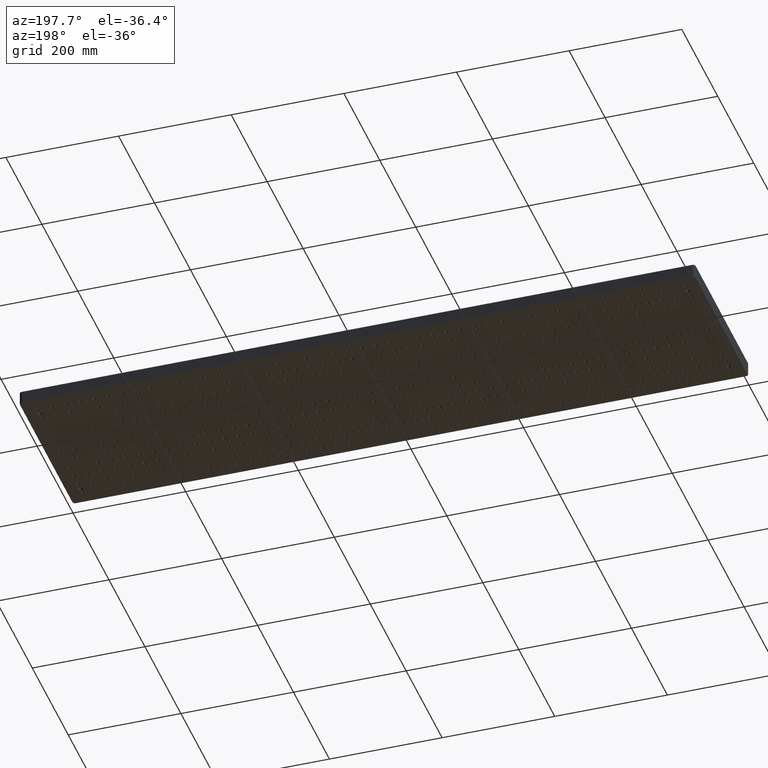
[diagram: clean part render]
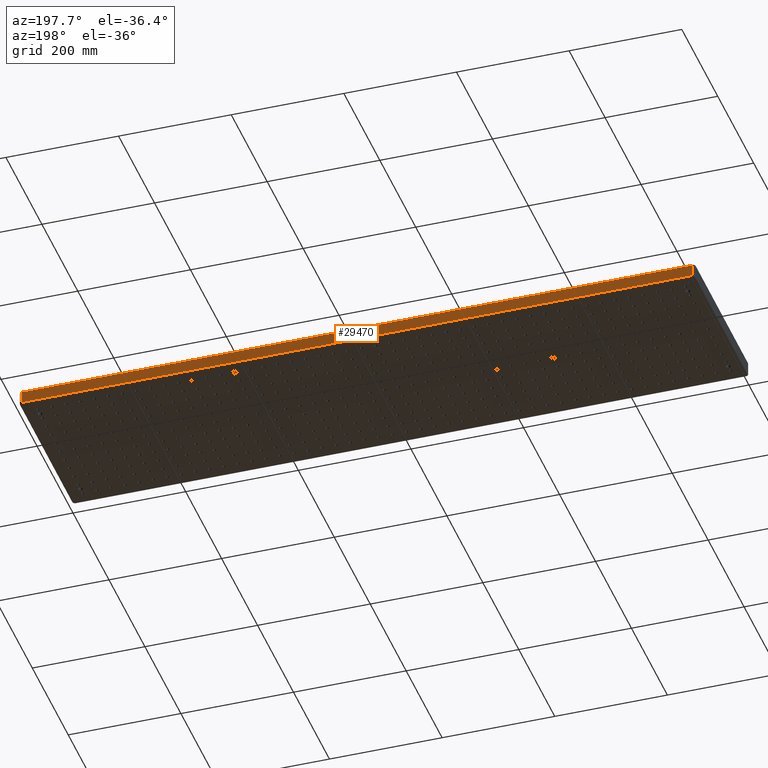
[diagram: same view with one face highlighted and labeled with its STEP entity id]
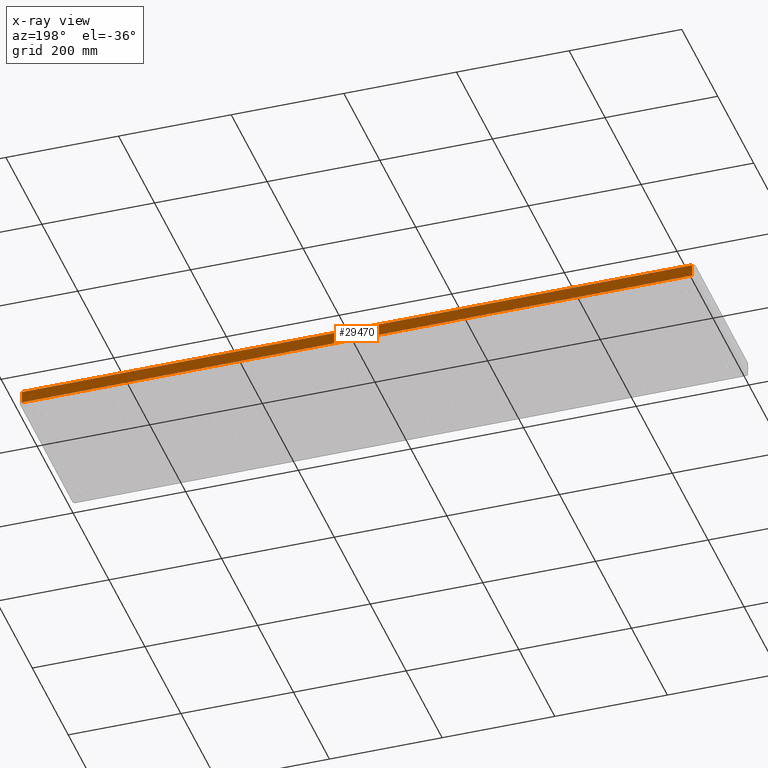
[diagram: x-ray of the same camera — body ghosted, the highlighted face saturated]
A machine part, auxiliary view. The second image highlights one B-rep face of the part: STEP entity #29470.
The next image is the same camera in x-ray: the body ghosted, the highlighted face saturated — about 0% of this face is hidden behind the body in this view.
In plain terms, the highlighted planar face has unit normal (0, 1, -0).
Its self-contained STEP definition (entity closure, byte-faithful):
#2616 = EDGE_LOOP ( 'NONE', ( #23593, #4538, #15961, #26451 ) ) ;
#4528 = EDGE_CURVE ( 'NONE', #24093, #7180, #22654, .T. ) ;
#4538 = ORIENTED_EDGE ( 'NONE', *, *, #9692, .T. ) ;
#5423 = CARTESIAN_POINT ( 'NONE',  ( 5.000000000000000000, 300.0000000000000600, -2.000000000000001800 ) ) ;
#6905 = DIRECTION ( 'NONE',  ( -0.0000000000000000000, -0.0000000000000000000, -1.000000000000000000 ) ) ;
#7180 = VERTEX_POINT ( 'NONE', #5423 ) ;
#9692 = EDGE_CURVE ( 'NONE', #32741, #24093, #18888, .T. ) ;
#9813 = DIRECTION ( 'NONE',  ( -1.000000000000000000, 4.625929269271485800E-017, 0.0000000000000000000 ) ) ;
#12145 = VECTOR ( 'NONE', #9813, 1000.000000000000000 ) ;
#12765 = VERTEX_POINT ( 'NONE', #38765 ) ;
#13227 = EDGE_CURVE ( 'NONE', #12765, #32741, #27550, .T. ) ;
#13752 = CARTESIAN_POINT ( 'NONE',  ( 0.0000000000000000000, 300.0000000000000600, -25.39999999999999900 ) ) ;
#14497 = DIRECTION ( 'NONE',  ( 1.000000000000000000, -4.625929269271485800E-017, -0.0000000000000000000 ) ) ;
#15961 = ORIENTED_EDGE ( 'NONE', *, *, #4528, .T. ) ;
#17262 = DIRECTION ( 'NONE',  ( 0.0000000000000000000, 0.0000000000000000000, 1.000000000000000000 ) ) ;
#17419 = VECTOR ( 'NONE', #6905, 1000.000000000000000 ) ;
#18888 = LINE ( 'NONE', #34139, #12145 ) ;
#22654 = LINE ( 'NONE', #35546, #35129 ) ;
#23593 = ORIENTED_EDGE ( 'NONE', *, *, #13227, .T. ) ;
#24093 = VERTEX_POINT ( 'NONE', #38907 ) ;
#25868 = FACE_OUTER_BOUND ( 'NONE', #2616, .T. ) ;
#26451 = ORIENTED_EDGE ( 'NONE', *, *, #36680, .T. ) ;
#27550 = LINE ( 'NONE', #38202, #17419 ) ;
#29232 = PLANE ( 'NONE',  #33426 ) ;
#29470 = ADVANCED_FACE ( 'NONE', ( #25868 ), #29232, .T. ) ;
#29494 = DIRECTION ( 'NONE',  ( 4.625929269271485800E-017, 1.000000000000000000, -0.0000000000000000000 ) ) ;
#31979 = VECTOR ( 'NONE', #14497, 1000.000000000000000 ) ;
#32741 = VERTEX_POINT ( 'NONE', #38633 ) ;
#32910 = CARTESIAN_POINT ( 'NONE',  ( 1195.000000000000000, 300.0000000000000000, -2.000000000000000000 ) ) ;
#33426 = AXIS2_PLACEMENT_3D ( 'NONE', #13752, #29494, #35017 ) ;
#34139 = CARTESIAN_POINT ( 'NONE',  ( 0.0000000000000000000, 300.0000000000000600, -23.39999999999999900 ) ) ;
#35017 = DIRECTION ( 'NONE',  ( -1.000000000000000000, 4.625929269271485800E-017, 0.0000000000000000000 ) ) ;
#35129 = VECTOR ( 'NONE', #17262, 1000.000000000000000 ) ;
#35546 = CARTESIAN_POINT ( 'NONE',  ( 5.000000000000000000, 300.0000000000000600, -25.39999999999999900 ) ) ;
#36680 = EDGE_CURVE ( 'NONE', #7180, #12765, #39189, .T. ) ;
#38202 = CARTESIAN_POINT ( 'NONE',  ( 1195.000000000000000, 300.0000000000000000, -25.39999999999999900 ) ) ;
#38633 = CARTESIAN_POINT ( 'NONE',  ( 1195.000000000000000, 300.0000000000000000, -23.39999999999999900 ) ) ;
#38765 = CARTESIAN_POINT ( 'NONE',  ( 1195.000000000000000, 300.0000000000000000, -2.000000000000001800 ) ) ;
#38907 = CARTESIAN_POINT ( 'NONE',  ( 5.000000000000000000, 300.0000000000000600, -23.39999999999999900 ) ) ;
#39189 = LINE ( 'NONE', #32910, #31979 ) ;